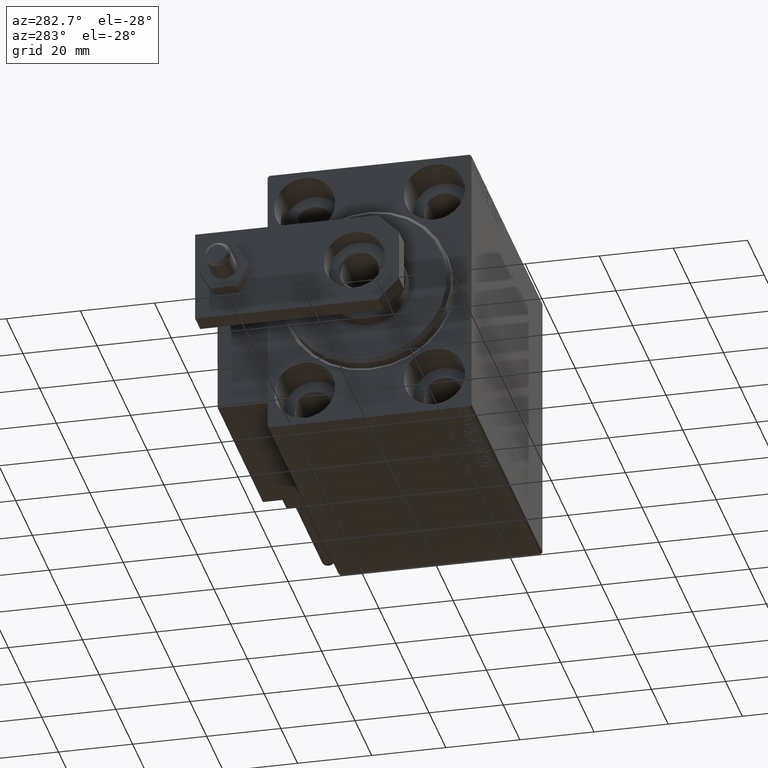
[diagram: clean part render]
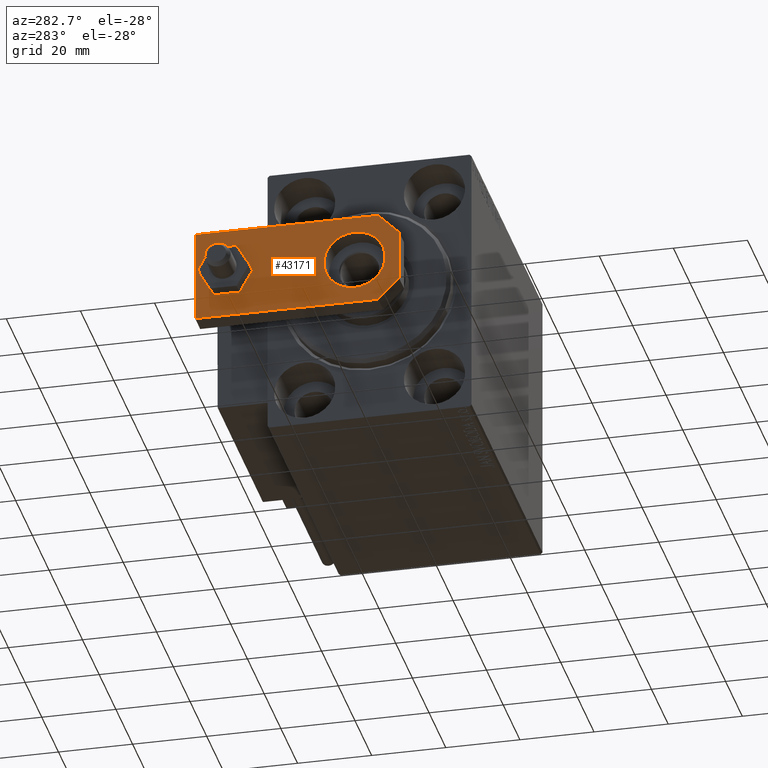
[diagram: same view with one face highlighted and labeled with its STEP entity id]
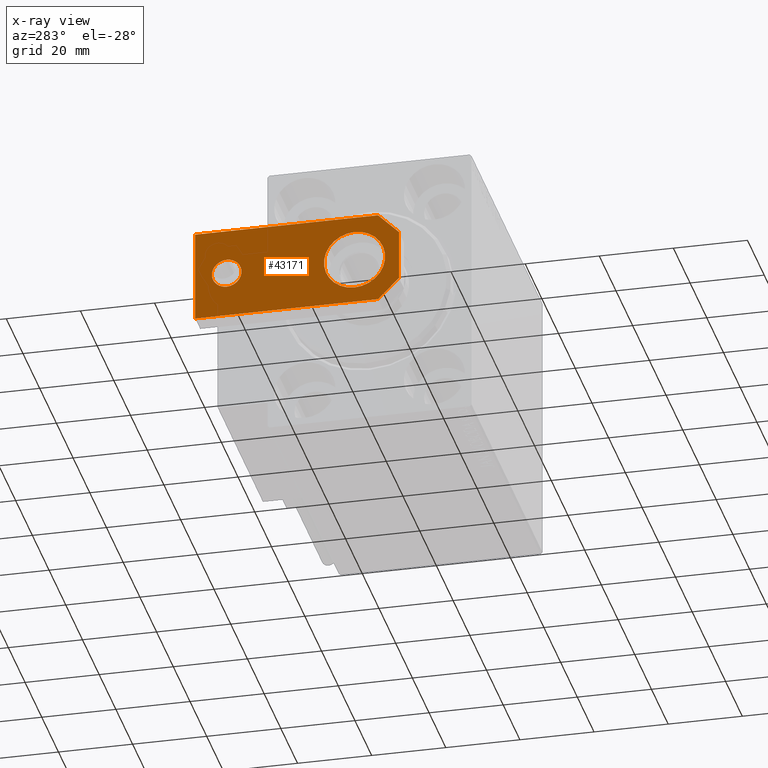
[diagram: x-ray of the same camera — body ghosted, the highlighted face saturated]
A machine part, auxiliary view. The second image highlights one B-rep face of the part: STEP entity #43171.
The next image is the same camera in x-ray: the body ghosted, the highlighted face saturated — about 0% of this face is hidden behind the body in this view.
In plain terms, the highlighted planar face has unit normal (-1, 0, 0).
Its self-contained STEP definition (entity closure, byte-faithful):
#160 = VECTOR ( 'NONE', #48238, 1000.000000000000114 ) ;
#568 = VERTEX_POINT ( 'NONE', #45523 ) ;
#1908 = ORIENTED_EDGE ( 'NONE', *, *, #23631, .T. ) ;
#1967 = VECTOR ( 'NONE', #49783, 1000.000000000000000 ) ;
#2258 = EDGE_CURVE ( 'NONE', #568, #3256, #7201, .T. ) ;
#2534 = CARTESIAN_POINT ( 'NONE',  ( 3.419999999999990603, -3.419999999999999485, 6.000000000000000000 ) ) ;
#3256 = VERTEX_POINT ( 'NONE', #30636 ) ;
#4950 = DIRECTION ( 'NONE',  ( 1.000000000000000000, 0.000000000000000000, 0.000000000000000000 ) ) ;
#5008 = CARTESIAN_POINT ( 'NONE',  ( 12.50000000000000000, 55.00000000000000000, 6.000000000000000000 ) ) ;
#5168 = AXIS2_PLACEMENT_3D ( 'NONE', #39510, #5461, #4950 ) ;
#5461 = DIRECTION ( 'NONE',  ( 0.000000000000000000, 0.000000000000000000, 1.000000000000000000 ) ) ;
#5563 = FACE_BOUND ( 'NONE', #32095, .T. ) ;
#5624 = VERTEX_POINT ( 'NONE', #26752 ) ;
#6054 = FACE_BOUND ( 'NONE', #39248, .T. ) ;
#6328 = CARTESIAN_POINT ( 'NONE',  ( -3.420000000000013696, -3.420000000000006146, 6.000000000000000000 ) ) ;
#6500 = ORIENTED_EDGE ( 'NONE', *, *, #12169, .F. ) ;
#7201 = CIRCLE ( 'NONE', #41810, 8.250000000000000000 ) ;
#8293 = DIRECTION ( 'NONE',  ( 1.000000000000000000, 0.000000000000000000, 0.000000000000000000 ) ) ;
#9275 = LINE ( 'NONE', #32724, #37576 ) ;
#9289 = ORIENTED_EDGE ( 'NONE', *, *, #17053, .T. ) ;
#9742 = EDGE_CURVE ( 'NONE', #5624, #14503, #29771, .T. ) ;
#10857 = LINE ( 'NONE', #26233, #27060 ) ;
#10869 = VECTOR ( 'NONE', #42870, 1000.000000000000000 ) ;
#11437 = ORIENTED_EDGE ( 'NONE', *, *, #18956, .T. ) ;
#11594 = CARTESIAN_POINT ( 'NONE',  ( -9.629649721936179265E-32, 11.99999999999999645, 6.000000000000000000 ) ) ;
#12039 = DIRECTION ( 'NONE',  ( 0.000000000000000000, 0.000000000000000000, 1.000000000000000000 ) ) ;
#12107 = CARTESIAN_POINT ( 'NONE',  ( 12.50000000000000000, 55.00000000000000000, 6.000000000000000000 ) ) ;
#12169 = EDGE_CURVE ( 'NONE', #40776, #40385, #49417, .T. ) ;
#14503 = VERTEX_POINT ( 'NONE', #33390 ) ;
#14721 = CARTESIAN_POINT ( 'NONE',  ( -12.49999999999999822, 55.00000000000000000, 6.000000000000000000 ) ) ;
#14834 = CIRCLE ( 'NONE', #5168, 8.250000000000000000 ) ;
#15208 = EDGE_CURVE ( 'NONE', #40385, #40776, #47755, .T. ) ;
#16869 = ORIENTED_EDGE ( 'NONE', *, *, #2258, .F. ) ;
#17053 = EDGE_CURVE ( 'NONE', #38137, #42378, #36842, .T. ) ;
#17308 = CARTESIAN_POINT ( 'NONE',  ( 4.000000000000000888, 46.50000000000000000, 6.000000000000000000 ) ) ;
#17575 = EDGE_CURVE ( 'NONE', #3256, #568, #14834, .T. ) ;
#18956 = EDGE_CURVE ( 'NONE', #25297, #38137, #49280, .T. ) ;
#19047 = ORIENTED_EDGE ( 'NONE', *, *, #9742, .T. ) ;
#19953 = EDGE_CURVE ( 'NONE', #29411, #25297, #23205, .T. ) ;
#20878 = DIRECTION ( 'NONE',  ( 0.000000000000000000, 0.000000000000000000, 1.000000000000000000 ) ) ;
#21635 = DIRECTION ( 'NONE',  ( 1.000000000000000000, 0.000000000000000000, 0.000000000000000000 ) ) ;
#23205 = LINE ( 'NONE', #12107, #10869 ) ;
#23631 = EDGE_CURVE ( 'NONE', #42378, #5624, #9275, .T. ) ;
#24440 = VECTOR ( 'NONE', #41125, 1000.000000000000000 ) ;
#24488 = CARTESIAN_POINT ( 'NONE',  ( -4.000000000000000888, 46.50000000000000000, 6.000000000000000000 ) ) ;
#24550 = CARTESIAN_POINT ( 'NONE',  ( -12.49999999999999822, 55.00000000000000000, 6.000000000000000000 ) ) ;
#24970 = DIRECTION ( 'NONE',  ( 1.000000000000000000, 0.000000000000000000, 0.000000000000000000 ) ) ;
#25297 = VERTEX_POINT ( 'NONE', #24550 ) ;
#25981 = AXIS2_PLACEMENT_3D ( 'NONE', #28438, #20878, #35999 ) ;
#26233 = CARTESIAN_POINT ( 'NONE',  ( 12.50000000000000355, 4.814824860968089633E-32, 6.000000000000000000 ) ) ;
#26752 = CARTESIAN_POINT ( 'NONE',  ( 6.839999999999998970, 4.814824860968089633E-32, 6.000000000000000000 ) ) ;
#26970 = EDGE_LOOP ( 'NONE', ( #11437, #9289, #1908, #19047, #33635, #47333 ) ) ;
#27060 = VECTOR ( 'NONE', #38329, 1000.000000000000000 ) ;
#28438 = CARTESIAN_POINT ( 'NONE',  ( -1.432611055310774642E-16, 46.50000000000000000, 6.000000000000000000 ) ) ;
#29329 = ORIENTED_EDGE ( 'NONE', *, *, #15208, .F. ) ;
#29411 = VERTEX_POINT ( 'NONE', #5008 ) ;
#29771 = LINE ( 'NONE', #2534, #160 ) ;
#30055 = AXIS2_PLACEMENT_3D ( 'NONE', #47608, #12039, #35226 ) ;
#30636 = CARTESIAN_POINT ( 'NONE',  ( 8.250000000000000000, 11.99999999999999822, 6.000000000000000000 ) ) ;
#31839 = ORIENTED_EDGE ( 'NONE', *, *, #17575, .F. ) ;
#32095 = EDGE_LOOP ( 'NONE', ( #16869, #31839 ) ) ;
#32724 = CARTESIAN_POINT ( 'NONE',  ( -12.50000000000000355, 4.814824860968089633E-32, 6.000000000000000000 ) ) ;
#33390 = CARTESIAN_POINT ( 'NONE',  ( 12.50000000000000355, 5.659999999999991260, 6.000000000000000000 ) ) ;
#33635 = ORIENTED_EDGE ( 'NONE', *, *, #47800, .T. ) ;
#35226 = DIRECTION ( 'NONE',  ( 1.000000000000000000, 0.000000000000000000, 0.000000000000000000 ) ) ;
#35999 = DIRECTION ( 'NONE',  ( 1.000000000000000000, 0.000000000000000000, 0.000000000000000000 ) ) ;
#36842 = LINE ( 'NONE', #6328, #24440 ) ;
#37576 = VECTOR ( 'NONE', #21635, 1000.000000000000000 ) ;
#38137 = VERTEX_POINT ( 'NONE', #38670 ) ;
#38329 = DIRECTION ( 'NONE',  ( -6.308085367188389994E-17, 1.000000000000000000, 0.000000000000000000 ) ) ;
#38670 = CARTESIAN_POINT ( 'NONE',  ( -12.50000000000000355, 5.660000000000005471, 6.000000000000000000 ) ) ;
#39248 = EDGE_LOOP ( 'NONE', ( #29329, #6500 ) ) ;
#39510 = CARTESIAN_POINT ( 'NONE',  ( -9.629649721936179265E-32, 11.99999999999999645, 6.000000000000000000 ) ) ;
#39606 = CARTESIAN_POINT ( 'NONE',  ( 0.000000000000000000, 0.000000000000000000, 6.000000000000000000 ) ) ;
#40385 = VERTEX_POINT ( 'NONE', #24488 ) ;
#40776 = VERTEX_POINT ( 'NONE', #17308 ) ;
#41125 = DIRECTION ( 'NONE',  ( 0.7071067811865467956, -0.7071067811865483499, 0.000000000000000000 ) ) ;
#41810 = AXIS2_PLACEMENT_3D ( 'NONE', #11594, #42605, #8293 ) ;
#42378 = VERTEX_POINT ( 'NONE', #43762 ) ;
#42605 = DIRECTION ( 'NONE',  ( 0.000000000000000000, 0.000000000000000000, 1.000000000000000000 ) ) ;
#42870 = DIRECTION ( 'NONE',  ( -1.000000000000000000, 0.000000000000000000, 0.000000000000000000 ) ) ;
#43171 = ADVANCED_FACE ( 'NONE', ( #6054, #48210, #5563 ), #47957, .T. ) ;
#43762 = CARTESIAN_POINT ( 'NONE',  ( -6.840000000000012292, 4.814824860968089633E-32, 6.000000000000000000 ) ) ;
#45523 = CARTESIAN_POINT ( 'NONE',  ( -8.250000000000000000, 11.99999999999999645, 6.000000000000000000 ) ) ;
#47333 = ORIENTED_EDGE ( 'NONE', *, *, #19953, .T. ) ;
#47608 = CARTESIAN_POINT ( 'NONE',  ( -1.432611055310774642E-16, 46.50000000000000000, 6.000000000000000000 ) ) ;
#47703 = DIRECTION ( 'NONE',  ( -0.000000000000000000, 0.000000000000000000, 1.000000000000000000 ) ) ;
#47755 = CIRCLE ( 'NONE', #25981, 4.000000000000000888 ) ;
#47800 = EDGE_CURVE ( 'NONE', #14503, #29411, #10857, .T. ) ;
#47957 = PLANE ( 'NONE',  #48703 ) ;
#48210 = FACE_OUTER_BOUND ( 'NONE', #26970, .T. ) ;
#48238 = DIRECTION ( 'NONE',  ( 0.7071067811865483499, 0.7071067811865465735, -0.000000000000000000 ) ) ;
#48703 = AXIS2_PLACEMENT_3D ( 'NONE', #39606, #47703, #24970 ) ;
#49280 = LINE ( 'NONE', #14721, #1967 ) ;
#49417 = CIRCLE ( 'NONE', #30055, 4.000000000000000888 ) ;
#49783 = DIRECTION ( 'NONE',  ( -9.462128050782584375E-17, -1.000000000000000000, 0.000000000000000000 ) ) ;